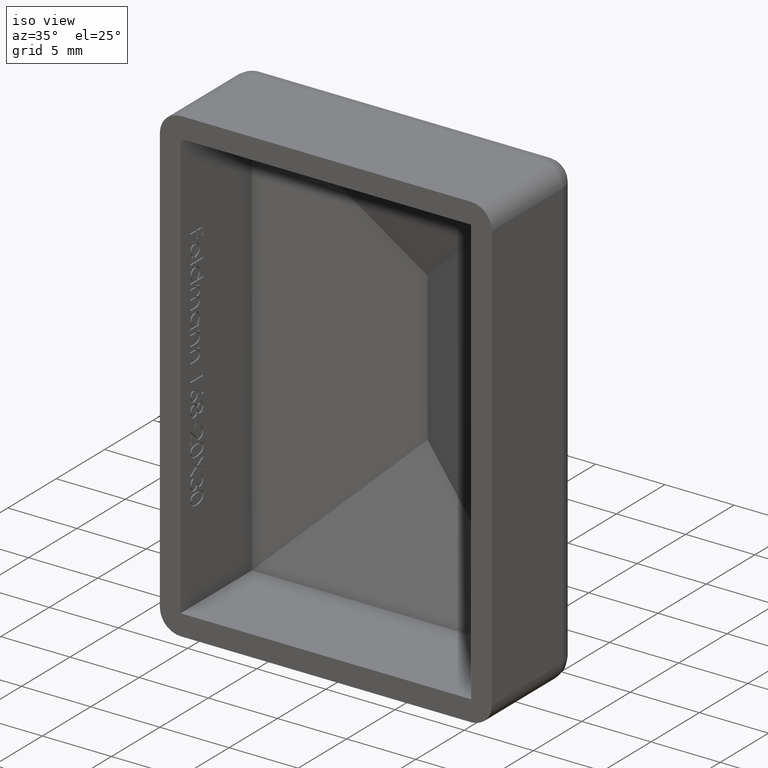
[diagram: clean part render]
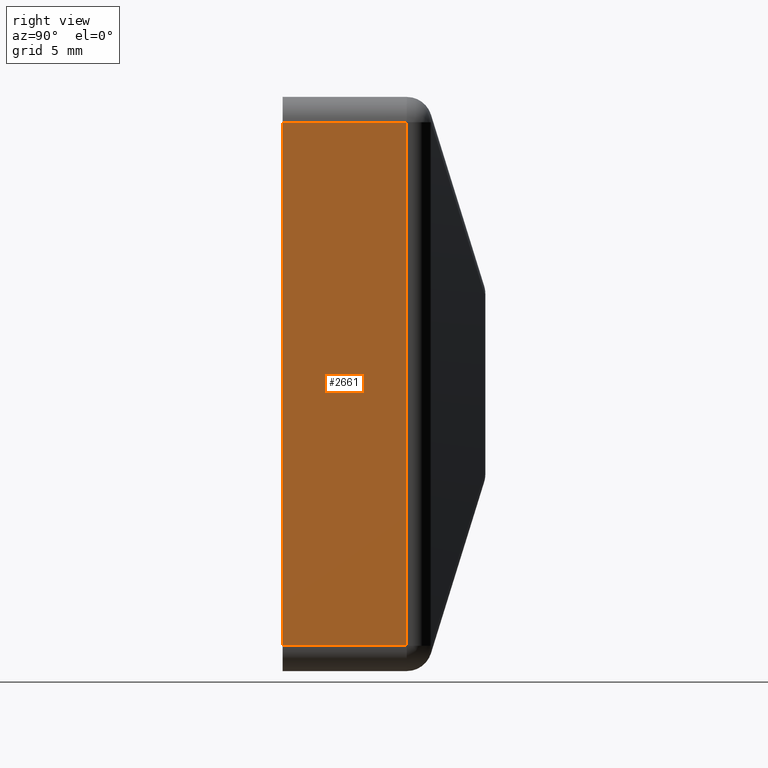
[diagram: tour spotlight — one face highlighted and labeled with its STEP entity id]
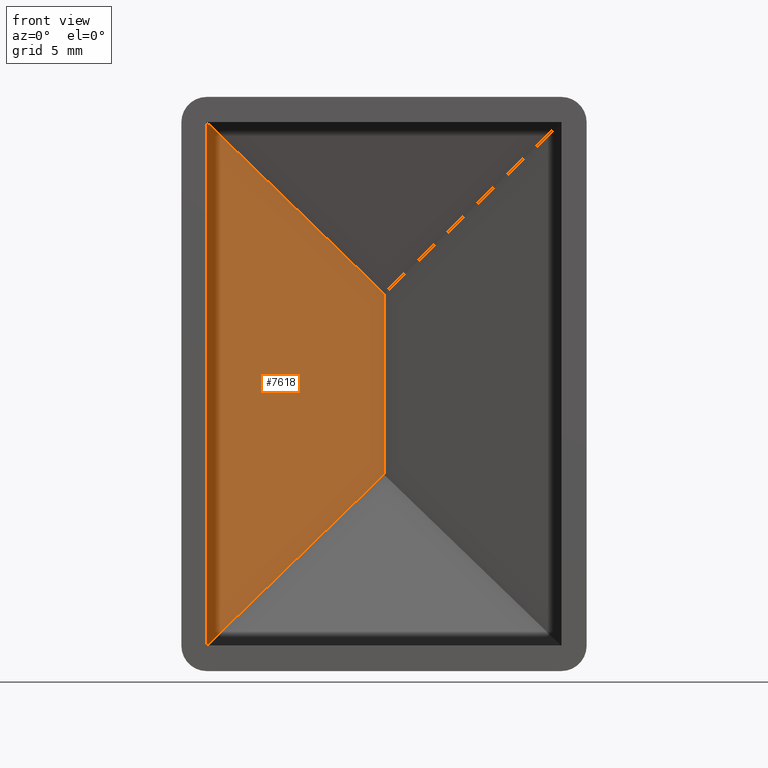
[diagram: tour spotlight — one face highlighted and labeled with its STEP entity id]
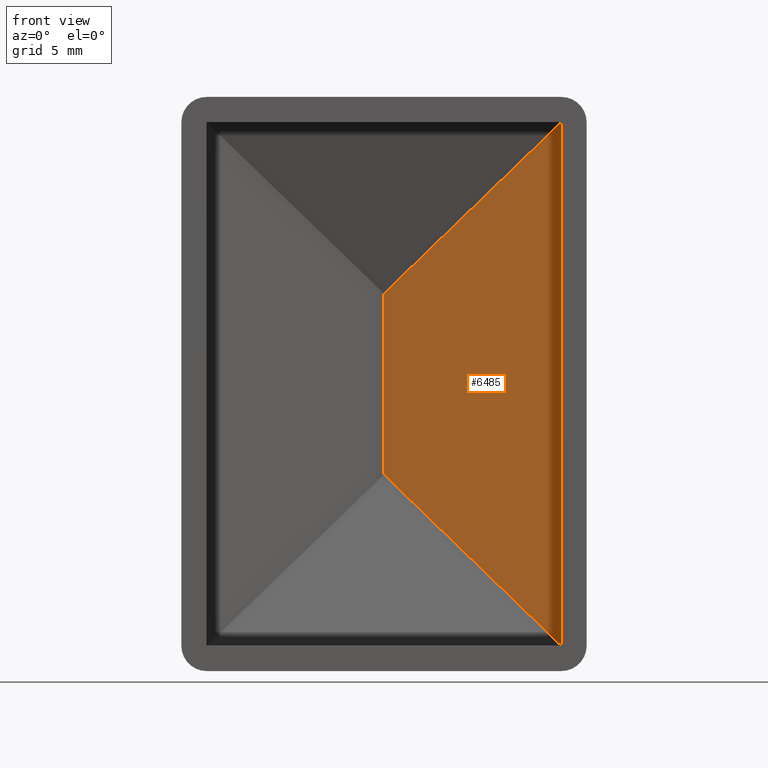
[diagram: tour spotlight — one face highlighted and labeled with its STEP entity id]
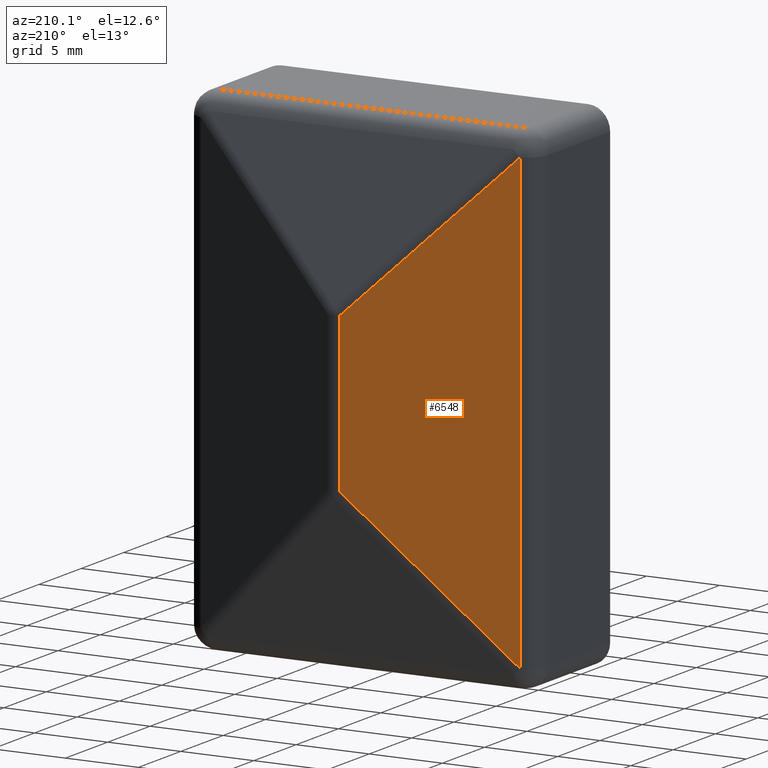
[diagram: tour spotlight — one face highlighted and labeled with its STEP entity id]
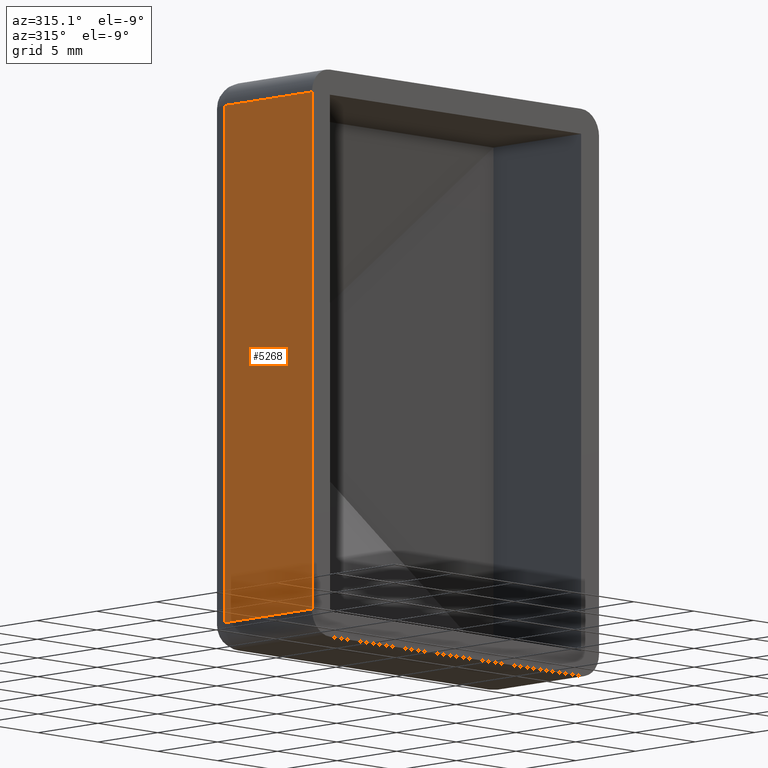
[diagram: tour spotlight — one face highlighted and labeled with its STEP entity id]
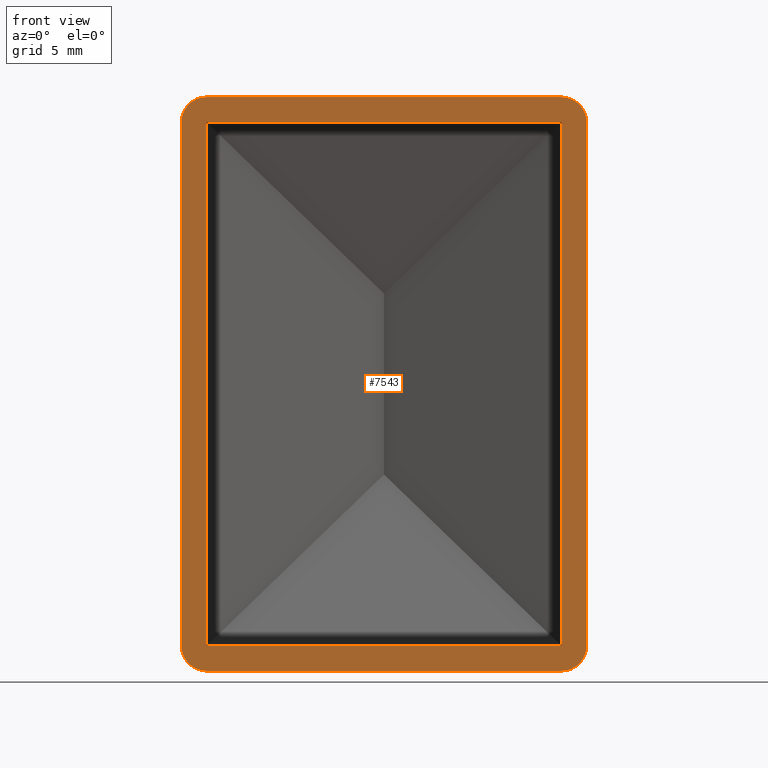
[diagram: tour spotlight — one face highlighted and labeled with its STEP entity id]
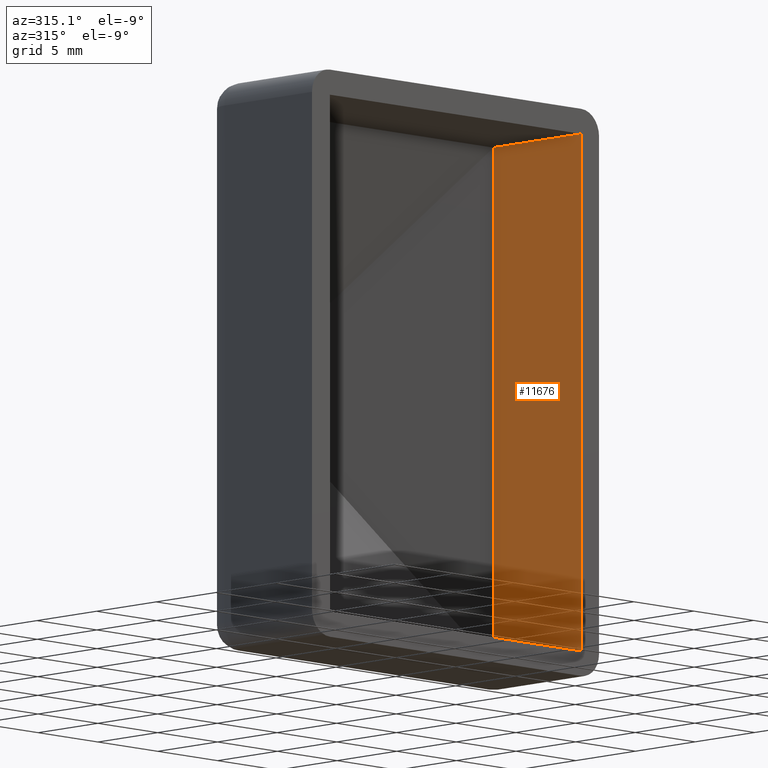
[diagram: tour spotlight — one face highlighted and labeled with its STEP entity id]
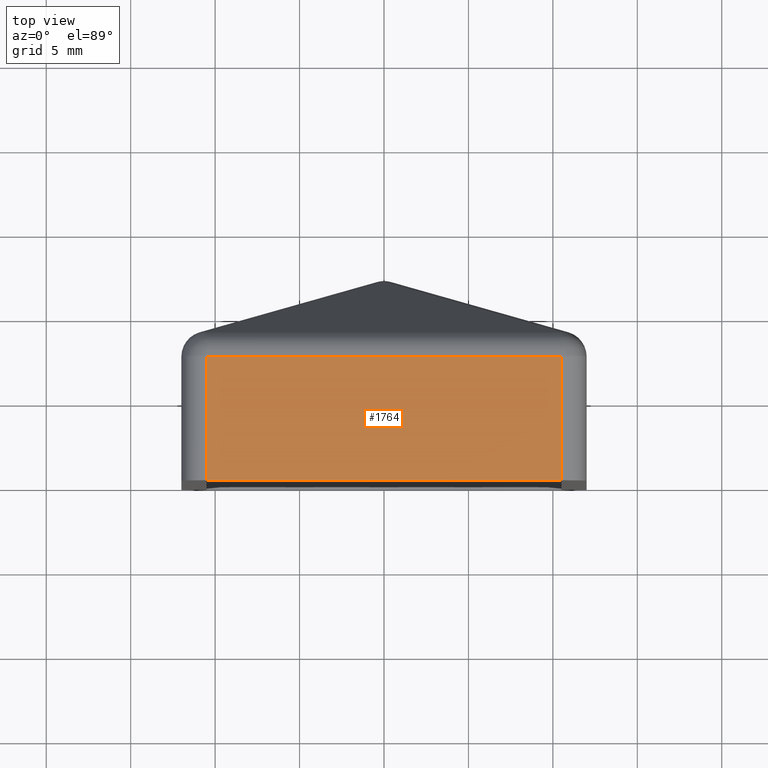
[diagram: tour spotlight — one face highlighted and labeled with its STEP entity id]
A machine part: a face-by-face anatomy tour. The part has 263 B-rep faces; the first image is the clean iso view, then the 8 largest visible faces are spotlighted one at a time (largest first), each with its STEP entity span.

Face 1 — right view, entity #2661. In plain terms, the highlighted planar face has unit normal (-1, 0, 0).
Definition (entity closure, byte-faithful):
#495 = ORIENTED_EDGE ( 'NONE', *, *, #4930, .T. ) ;
#1062 = VECTOR ( 'NONE', #8036, 1000.000000000000000 ) ;
#1474 = CARTESIAN_POINT ( 'NONE',  ( 12.00000000000001954, 7.350000000000001421, -16.99999999999997513 ) ) ;
#1808 = EDGE_CURVE ( 'NONE', #9112, #10849, #3072, .T. ) ;
#2187 = CARTESIAN_POINT ( 'NONE',  ( 12.00000000000001066, 30.00000000000000000, -15.49999999999997335 ) ) ;
#2231 = CARTESIAN_POINT ( 'NONE',  ( 12.00000000000001066, 0.000000000000000000, -15.49999999999997335 ) ) ;
#2661 = ADVANCED_FACE ( 'NONE', ( #10814 ), #13761, .F. ) ;
#3072 = LINE ( 'NONE', #1474, #1062 ) ;
#3106 = DIRECTION ( 'NONE',  ( -2.040851148208008245E-16, -0.000000000000000000, -1.000000000000000000 ) ) ;
#3140 = DIRECTION ( 'NONE',  ( -0.000000000000000000, 1.000000000000000000, -0.000000000000000000 ) ) ;
#3244 = DIRECTION ( 'NONE',  ( 2.040851148208008491E-16, 0.000000000000000000, 1.000000000000000000 ) ) ;
#3299 = EDGE_LOOP ( 'NONE', ( #13499, #495, #5204, #11375 ) ) ;
#3859 = EDGE_CURVE ( 'NONE', #10849, #6125, #11468, .T. ) ;
#3936 = AXIS2_PLACEMENT_3D ( 'NONE', #12941, #7707, #3244 ) ;
#3966 = CARTESIAN_POINT ( 'NONE',  ( 12.00000000000001954, 7.350000000000001421, -15.49999999999997335 ) ) ;
#4152 = EDGE_CURVE ( 'NONE', #6125, #13485, #12153, .T. ) ;
#4930 = EDGE_CURVE ( 'NONE', #13485, #9112, #13510, .T. ) ;
#5204 = ORIENTED_EDGE ( 'NONE', *, *, #1808, .T. ) ;
#6125 = VERTEX_POINT ( 'NONE', #7074 ) ;
#7074 = CARTESIAN_POINT ( 'NONE',  ( 12.00000000000001776, 0.000000000000000000, 15.50000000000002842 ) ) ;
#7707 = DIRECTION ( 'NONE',  ( -1.000000000000000000, 0.000000000000000000, 2.040851148208008491E-16 ) ) ;
#8036 = DIRECTION ( 'NONE',  ( -0.000000000000000000, -0.000000000000000000, 1.000000000000000000 ) ) ;
#8606 = CARTESIAN_POINT ( 'NONE',  ( 12.00000000000001066, 0.000000000000000000, -16.99999999999997513 ) ) ;
#8639 = CARTESIAN_POINT ( 'NONE',  ( 12.00000000000001954, 7.350000000000001421, 15.50000000000002842 ) ) ;
#9112 = VERTEX_POINT ( 'NONE', #3966 ) ;
#9412 = VECTOR ( 'NONE', #3106, 1000.000000000000000 ) ;
#10294 = VECTOR ( 'NONE', #3140, 1000.000000000000000 ) ;
#10814 = FACE_OUTER_BOUND ( 'NONE', #3299, .T. ) ;
#10849 = VERTEX_POINT ( 'NONE', #8639 ) ;
#11375 = ORIENTED_EDGE ( 'NONE', *, *, #3859, .T. ) ;
#11382 = CARTESIAN_POINT ( 'NONE',  ( 12.00000000000001776, 30.00000000000000000, 15.50000000000002842 ) ) ;
#11468 = LINE ( 'NONE', #11382, #12517 ) ;
#12153 = LINE ( 'NONE', #8606, #9412 ) ;
#12517 = VECTOR ( 'NONE', #13569, 1000.000000000000000 ) ;
#12941 = CARTESIAN_POINT ( 'NONE',  ( 12.00000000000001066, 30.00000000000000000, -16.99999999999997513 ) ) ;
#13485 = VERTEX_POINT ( 'NONE', #2231 ) ;
#13499 = ORIENTED_EDGE ( 'NONE', *, *, #4152, .T. ) ;
#13510 = LINE ( 'NONE', #2187, #10294 ) ;
#13569 = DIRECTION ( 'NONE',  ( 0.000000000000000000, -1.000000000000000000, 0.000000000000000000 ) ) ;
#13761 = PLANE ( 'NONE',  #3936 ) ;

Face 2 — front view, entity #7618. In plain terms, the highlighted planar face has unit normal (0.2873, -0.9578, 0).
Definition (entity closure, byte-faithful):
#292 = DIRECTION ( 'NONE',  ( -0.7029955450421472296, -0.2108986635126437192, -0.6792046947566505732 ) ) ;
#366 = PLANE ( 'NONE',  #392 ) ;
#392 = AXIS2_PLACEMENT_3D ( 'NONE', #1446, #13320, #7859 ) ;
#457 = VERTEX_POINT ( 'NONE', #7562 ) ;
#475 = CARTESIAN_POINT ( 'NONE',  ( 1.310280479957180804E-15, 10.50000000000000000, 5.355342120955786100 ) ) ;
#581 = CARTESIAN_POINT ( 'NONE',  ( 7.860465750519907147E-16, 10.50000000000000000, -5.355342120955782548 ) ) ;
#894 = VECTOR ( 'NONE', #292, 1000.000000000000114 ) ;
#1009 = CARTESIAN_POINT ( 'NONE',  ( -10.49999999999998579, 7.350000000000012967, 15.50000000000003020 ) ) ;
#1446 = CARTESIAN_POINT ( 'NONE',  ( -10.49999999999998401, 7.350000000000012967, -16.99999999999997513 ) ) ;
#2316 = LINE ( 'NONE', #13024, #10591 ) ;
#3374 = ORIENTED_EDGE ( 'NONE', *, *, #14206, .T. ) ;
#3655 = EDGE_LOOP ( 'NONE', ( #11872, #3374, #11572, #13982 ) ) ;
#4240 = DIRECTION ( 'NONE',  ( 0.000000000000000000, 0.000000000000000000, 1.000000000000000000 ) ) ;
#5055 = LINE ( 'NONE', #11802, #8138 ) ;
#5643 = CARTESIAN_POINT ( 'NONE',  ( -5.930432836189265089, 8.720870149143225447, 11.08507661598342331 ) ) ;
#6460 = DIRECTION ( 'NONE',  ( 2.040851148208008491E-16, 6.122553444624010683E-17, 1.000000000000000000 ) ) ;
#6584 = EDGE_CURVE ( 'NONE', #457, #13883, #2316, .T. ) ;
#6691 = VECTOR ( 'NONE', #11101, 1000.000000000000114 ) ;
#6876 = LINE ( 'NONE', #5643, #6691 ) ;
#7562 = CARTESIAN_POINT ( 'NONE',  ( -10.49999999999996447, 7.350000000000019185, -15.50000000000000355 ) ) ;
#7618 = ADVANCED_FACE ( 'NONE', ( #7631 ), #366, .T. ) ;
#7631 = FACE_OUTER_BOUND ( 'NONE', #3655, .T. ) ;
#7859 = DIRECTION ( 'NONE',  ( 0.9578262852211515410, 0.2873478855663447740, 0.000000000000000000 ) ) ;
#8138 = VECTOR ( 'NONE', #4240, 1000.000000000000000 ) ;
#10591 = VECTOR ( 'NONE', #6460, 1000.000000000000000 ) ;
#10671 = LINE ( 'NONE', #13399, #894 ) ;
#11101 = DIRECTION ( 'NONE',  ( -0.7029955450421472296, -0.2108986635126437192, 0.6792046947566505732 ) ) ;
#11572 = ORIENTED_EDGE ( 'NONE', *, *, #6584, .F. ) ;
#11574 = EDGE_CURVE ( 'NONE', #12856, #13210, #5055, .T. ) ;
#11802 = CARTESIAN_POINT ( 'NONE',  ( 1.188307735552561752E-15, 10.50000000000000000, -16.99999999999997513 ) ) ;
#11872 = ORIENTED_EDGE ( 'NONE', *, *, #11574, .T. ) ;
#12375 = EDGE_CURVE ( 'NONE', #12856, #457, #10671, .T. ) ;
#12856 = VERTEX_POINT ( 'NONE', #581 ) ;
#13024 = CARTESIAN_POINT ( 'NONE',  ( -10.49999999999999112, 7.350000000000011191, -16.99999999999997513 ) ) ;
#13210 = VERTEX_POINT ( 'NONE', #475 ) ;
#13320 = DIRECTION ( 'NONE',  ( 0.2873478855663448295, -0.9578262852211516520, 0.000000000000000000 ) ) ;
#13399 = CARTESIAN_POINT ( 'NONE',  ( -11.21621681187841268, 7.135134956436484543, -16.19197852606921373 ) ) ;
#13883 = VERTEX_POINT ( 'NONE', #1009 ) ;
#13982 = ORIENTED_EDGE ( 'NONE', *, *, #12375, .F. ) ;
#14206 = EDGE_CURVE ( 'NONE', #13210, #13883, #6876, .T. ) ;

Face 3 — front view, entity #6485. In plain terms, the highlighted planar face has unit normal (-0.2873, -0.9578, 0).
Definition (entity closure, byte-faithful):
#475 = CARTESIAN_POINT ( 'NONE',  ( 1.310280479957180804E-15, 10.50000000000000000, 5.355342120955786100 ) ) ;
#479 = ORIENTED_EDGE ( 'NONE', *, *, #6685, .T. ) ;
#581 = CARTESIAN_POINT ( 'NONE',  ( 7.860465750519907147E-16, 10.50000000000000000, -5.355342120955782548 ) ) ;
#681 = LINE ( 'NONE', #13213, #7860 ) ;
#1425 = DIRECTION ( 'NONE',  ( 0.7029955450421473406, -0.2108986635126437192, -0.6792046947566505732 ) ) ;
#1575 = EDGE_CURVE ( 'NONE', #12741, #10915, #6186, .T. ) ;
#2362 = CARTESIAN_POINT ( 'NONE',  ( -0.6195615678548822558, 10.68586847035646414, -4.756747821823210209 ) ) ;
#3335 = DIRECTION ( 'NONE',  ( 2.040851148208008491E-16, -6.122553444624009450E-17, 1.000000000000000000 ) ) ;
#3617 = AXIS2_PLACEMENT_3D ( 'NONE', #8153, #6132, #7044 ) ;
#3786 = CARTESIAN_POINT ( 'NONE',  ( 10.50000000000001066, 7.350000000000009415, -16.99999999999997513 ) ) ;
#4064 = ORIENTED_EDGE ( 'NONE', *, *, #4324, .F. ) ;
#4240 = DIRECTION ( 'NONE',  ( 0.000000000000000000, 0.000000000000000000, 1.000000000000000000 ) ) ;
#4324 = EDGE_CURVE ( 'NONE', #13210, #10915, #681, .T. ) ;
#4412 = FACE_OUTER_BOUND ( 'NONE', #4464, .T. ) ;
#4464 = EDGE_LOOP ( 'NONE', ( #7518, #4064, #10252, #479 ) ) ;
#4517 = CARTESIAN_POINT ( 'NONE',  ( 10.50000000000000533, 7.350000000000010303, 15.50000000000004086 ) ) ;
#5055 = LINE ( 'NONE', #11802, #8138 ) ;
#5099 = VECTOR ( 'NONE', #1425, 1000.000000000000114 ) ;
#6132 = DIRECTION ( 'NONE',  ( -0.2873478855663447740, -0.9578262852211516520, 0.000000000000000000 ) ) ;
#6186 = LINE ( 'NONE', #3786, #10334 ) ;
#6485 = ADVANCED_FACE ( 'NONE', ( #4412 ), #10465, .T. ) ;
#6685 = EDGE_CURVE ( 'NONE', #12856, #12741, #11599, .T. ) ;
#7044 = DIRECTION ( 'NONE',  ( 0.9578262852211515410, -0.2873478855663447185, 0.000000000000000000 ) ) ;
#7518 = ORIENTED_EDGE ( 'NONE', *, *, #1575, .T. ) ;
#7860 = VECTOR ( 'NONE', #12057, 1000.000000000000114 ) ;
#8138 = VECTOR ( 'NONE', #4240, 1000.000000000000000 ) ;
#8153 = CARTESIAN_POINT ( 'NONE',  ( 4.336808689942017736E-16, 10.50000000000000000, -16.99999999999997513 ) ) ;
#10252 = ORIENTED_EDGE ( 'NONE', *, *, #11574, .F. ) ;
#10334 = VECTOR ( 'NONE', #3335, 1000.000000000000000 ) ;
#10465 = PLANE ( 'NONE',  #3617 ) ;
#10915 = VERTEX_POINT ( 'NONE', #4517 ) ;
#11574 = EDGE_CURVE ( 'NONE', #12856, #13210, #5055, .T. ) ;
#11599 = LINE ( 'NONE', #2362, #5099 ) ;
#11802 = CARTESIAN_POINT ( 'NONE',  ( 1.188307735552561752E-15, 10.50000000000000000, -16.99999999999997513 ) ) ;
#12057 = DIRECTION ( 'NONE',  ( 0.7029955450421473406, -0.2108986635126436915, 0.6792046947566505732 ) ) ;
#12741 = VERTEX_POINT ( 'NONE', #12874 ) ;
#12856 = VERTEX_POINT ( 'NONE', #581 ) ;
#12874 = CARTESIAN_POINT ( 'NONE',  ( 10.49999999999997158, 7.350000000000018296, -15.50000000000000533 ) ) ;
#13210 = VERTEX_POINT ( 'NONE', #475 ) ;
#13213 = CARTESIAN_POINT ( 'NONE',  ( -10.67418124154871784, 13.70225437246460842, -4.957602339465509544 ) ) ;

Face 4 — auxiliary view, entity #6548. In plain terms, the highlighted planar face has unit normal (0.2873, -0.9578, 0).
Definition (entity closure, byte-faithful):
#768 = EDGE_LOOP ( 'NONE', ( #1048, #10912, #10367, #2681 ) ) ;
#959 = CARTESIAN_POINT ( 'NONE',  ( -0.4310218283495158564, 11.93673942783172848, -5.355342120955786989 ) ) ;
#1048 = ORIENTED_EDGE ( 'NONE', *, *, #11108, .F. ) ;
#1169 = CARTESIAN_POINT ( 'NONE',  ( -10.93102182834950042, 8.786739427831740556, -16.99999999999997513 ) ) ;
#1173 = CARTESIAN_POINT ( 'NONE',  ( -10.93102182834950042, 8.786739427831740556, 15.50000000000002132 ) ) ;
#1291 = CARTESIAN_POINT ( 'NONE',  ( -10.93102182834950042, 8.786739427831740556, -16.99999999999997513 ) ) ;
#1665 = EDGE_CURVE ( 'NONE', #11258, #5918, #2567, .T. ) ;
#2497 = LINE ( 'NONE', #4247, #9210 ) ;
#2567 = LINE ( 'NONE', #1169, #7376 ) ;
#2681 = ORIENTED_EDGE ( 'NONE', *, *, #6992, .T. ) ;
#3274 = CARTESIAN_POINT ( 'NONE',  ( -10.93102182834950042, 8.786739427831740556, -15.50000000000002842 ) ) ;
#3708 = CARTESIAN_POINT ( 'NONE',  ( -0.4310218283495180214, 11.93673942783172670, 5.355342120955778995 ) ) ;
#4247 = CARTESIAN_POINT ( 'NONE',  ( 4.587009095683693083, 13.44214870504168680, 0.5071319351670905418 ) ) ;
#4556 = DIRECTION ( 'NONE',  ( 0.2873478855663448295, -0.9578262852211516520, 0.000000000000000000 ) ) ;
#5918 = VERTEX_POINT ( 'NONE', #1173 ) ;
#6548 = ADVANCED_FACE ( 'NONE', ( #9032 ), #7846, .F. ) ;
#6992 = EDGE_CURVE ( 'NONE', #5918, #7407, #2497, .T. ) ;
#7115 = DIRECTION ( 'NONE',  ( -0.7029955450421473406, -0.2108986635126437192, -0.6792046947566505732 ) ) ;
#7376 = VECTOR ( 'NONE', #7850, 1000.000000000000000 ) ;
#7407 = VERTEX_POINT ( 'NONE', #3708 ) ;
#7846 = PLANE ( 'NONE',  #10645 ) ;
#7850 = DIRECTION ( 'NONE',  ( -0.000000000000000000, -0.000000000000000000, 1.000000000000000000 ) ) ;
#9032 = FACE_OUTER_BOUND ( 'NONE', #768, .T. ) ;
#9181 = VECTOR ( 'NONE', #10650, 1000.000000000000000 ) ;
#9210 = VECTOR ( 'NONE', #11906, 1000.000000000000114 ) ;
#9981 = VECTOR ( 'NONE', #7115, 1000.000000000000114 ) ;
#10233 = LINE ( 'NONE', #11679, #9181 ) ;
#10367 = ORIENTED_EDGE ( 'NONE', *, *, #1665, .T. ) ;
#10645 = AXIS2_PLACEMENT_3D ( 'NONE', #1291, #4556, #11911 ) ;
#10650 = DIRECTION ( 'NONE',  ( -0.000000000000000000, -0.000000000000000000, 1.000000000000000000 ) ) ;
#10912 = ORIENTED_EDGE ( 'NONE', *, *, #12863, .T. ) ;
#11108 = EDGE_CURVE ( 'NONE', #13788, #7407, #10233, .T. ) ;
#11144 = CARTESIAN_POINT ( 'NONE',  ( -11.64723864022793087, 8.571874384268211244, -16.19197852606921373 ) ) ;
#11258 = VERTEX_POINT ( 'NONE', #3274 ) ;
#11679 = CARTESIAN_POINT ( 'NONE',  ( -0.4310218283495175218, 11.93673942783172848, -16.99999999999997513 ) ) ;
#11906 = DIRECTION ( 'NONE',  ( 0.7029955450421473406, 0.2108986635126437192, -0.6792046947566505732 ) ) ;
#11911 = DIRECTION ( 'NONE',  ( 0.9578262852211515410, 0.2873478855663447740, 0.000000000000000000 ) ) ;
#12863 = EDGE_CURVE ( 'NONE', #13788, #11258, #12889, .T. ) ;
#12889 = LINE ( 'NONE', #11144, #9981 ) ;
#13788 = VERTEX_POINT ( 'NONE', #959 ) ;

Face 5 — auxiliary view, entity #5268. In plain terms, the highlighted planar face has unit normal (1, 0, -0).
Definition (entity closure, byte-faithful):
#426 = VERTEX_POINT ( 'NONE', #2001 ) ;
#721 = CARTESIAN_POINT ( 'NONE',  ( -11.99999999999998224, 30.00000000000000000, 15.50000000000002842 ) ) ;
#1300 = LINE ( 'NONE', #11741, #3855 ) ;
#1351 = DIRECTION ( 'NONE',  ( 0.000000000000000000, -1.000000000000000000, 0.000000000000000000 ) ) ;
#1397 = CARTESIAN_POINT ( 'NONE',  ( -11.99999999999998934, 30.00000000000000000, -15.49999999999997335 ) ) ;
#1847 = DIRECTION ( 'NONE',  ( 1.000000000000000000, 0.000000000000000000, -2.040851148208008491E-16 ) ) ;
#2001 = CARTESIAN_POINT ( 'NONE',  ( -11.99999999999998224, 7.350000000000012967, -15.49999999999997335 ) ) ;
#2483 = VECTOR ( 'NONE', #1351, 1000.000000000000000 ) ;
#2624 = ORIENTED_EDGE ( 'NONE', *, *, #7758, .T. ) ;
#2756 = CARTESIAN_POINT ( 'NONE',  ( -11.99999999999998934, 0.000000000000000000, -16.99999999999997513 ) ) ;
#2780 = VERTEX_POINT ( 'NONE', #5954 ) ;
#3195 = FACE_OUTER_BOUND ( 'NONE', #5554, .T. ) ;
#3855 = VECTOR ( 'NONE', #4035, 1000.000000000000000 ) ;
#4035 = DIRECTION ( 'NONE',  ( -0.000000000000000000, -0.000000000000000000, 1.000000000000000000 ) ) ;
#4208 = CARTESIAN_POINT ( 'NONE',  ( -11.99999999999998934, 0.000000000000000000, -15.49999999999997335 ) ) ;
#4857 = DIRECTION ( 'NONE',  ( 2.040851148208008245E-16, 0.000000000000000000, 1.000000000000000000 ) ) ;
#5069 = DIRECTION ( 'NONE',  ( -2.040851148208008491E-16, 0.000000000000000000, -1.000000000000000000 ) ) ;
#5209 = CARTESIAN_POINT ( 'NONE',  ( -11.99999999999998934, 30.00000000000000000, -16.99999999999997513 ) ) ;
#5268 = ADVANCED_FACE ( 'NONE', ( #3195 ), #11666, .F. ) ;
#5454 = ORIENTED_EDGE ( 'NONE', *, *, #9860, .F. ) ;
#5554 = EDGE_LOOP ( 'NONE', ( #5454, #9475, #2624, #5565 ) ) ;
#5565 = ORIENTED_EDGE ( 'NONE', *, *, #9658, .T. ) ;
#5954 = CARTESIAN_POINT ( 'NONE',  ( -11.99999999999998224, 0.000000000000000000, 15.50000000000002842 ) ) ;
#6743 = AXIS2_PLACEMENT_3D ( 'NONE', #5209, #1847, #5069 ) ;
#7758 = EDGE_CURVE ( 'NONE', #9201, #2780, #7991, .T. ) ;
#7991 = LINE ( 'NONE', #2756, #10248 ) ;
#8898 = EDGE_CURVE ( 'NONE', #426, #9201, #10581, .T. ) ;
#9201 = VERTEX_POINT ( 'NONE', #4208 ) ;
#9475 = ORIENTED_EDGE ( 'NONE', *, *, #8898, .T. ) ;
#9658 = EDGE_CURVE ( 'NONE', #2780, #14095, #12620, .T. ) ;
#9860 = EDGE_CURVE ( 'NONE', #426, #14095, #1300, .T. ) ;
#10248 = VECTOR ( 'NONE', #4857, 1000.000000000000000 ) ;
#10415 = VECTOR ( 'NONE', #13013, 1000.000000000000000 ) ;
#10581 = LINE ( 'NONE', #1397, #2483 ) ;
#11666 = PLANE ( 'NONE',  #6743 ) ;
#11741 = CARTESIAN_POINT ( 'NONE',  ( -11.99999999999998224, 7.350000000000012967, -16.99999999999997513 ) ) ;
#12620 = LINE ( 'NONE', #721, #10415 ) ;
#13013 = DIRECTION ( 'NONE',  ( -0.000000000000000000, 1.000000000000000000, -0.000000000000000000 ) ) ;
#14095 = VERTEX_POINT ( 'NONE', #14136 ) ;
#14136 = CARTESIAN_POINT ( 'NONE',  ( -11.99999999999998224, 7.350000000000012967, 15.50000000000002842 ) ) ;

Face 6 — front view, entity #7543. In plain terms, the highlighted planar face has unit normal (0, 1, 0).
Definition (entity closure, byte-faithful):
#2 = CARTESIAN_POINT ( 'NONE',  ( -11.99999999999998224, 0.000000000000000000, 17.00000000000002842 ) ) ;
#177 = DIRECTION ( 'NONE',  ( 0.000000000000000000, 0.000000000000000000, 1.000000000000000000 ) ) ;
#299 = VERTEX_POINT ( 'NONE', #6282 ) ;
#490 = CARTESIAN_POINT ( 'NONE',  ( 10.50000000000001776, 0.000000000000000000, 15.50000000000002842 ) ) ;
#693 = EDGE_CURVE ( 'NONE', #299, #3822, #6697, .T. ) ;
#868 = ORIENTED_EDGE ( 'NONE', *, *, #8246, .F. ) ;
#1080 = DIRECTION ( 'NONE',  ( 1.000000000000000000, -0.000000000000000000, 0.000000000000000000 ) ) ;
#1640 = CIRCLE ( 'NONE', #2108, 1.499999999999999556 ) ;
#1706 = CIRCLE ( 'NONE', #10757, 1.500000000000001332 ) ;
#1719 = LINE ( 'NONE', #12079, #10485 ) ;
#2108 = AXIS2_PLACEMENT_3D ( 'NONE', #6537, #4142, #5258 ) ;
#2172 = CARTESIAN_POINT ( 'NONE',  ( 10.50000000000001599, 0.000000000000000000, 17.00000000000002842 ) ) ;
#2231 = CARTESIAN_POINT ( 'NONE',  ( 12.00000000000001066, 0.000000000000000000, -15.49999999999997335 ) ) ;
#2244 = DIRECTION ( 'NONE',  ( 0.000000000000000000, -0.000000000000000000, 1.000000000000000000 ) ) ;
#2427 = CARTESIAN_POINT ( 'NONE',  ( -10.49999999999999112, 0.000000000000000000, -16.99999999999997513 ) ) ;
#2627 = VERTEX_POINT ( 'NONE', #5195 ) ;
#2659 = VERTEX_POINT ( 'NONE', #12221 ) ;
#2747 = EDGE_CURVE ( 'NONE', #2659, #299, #1719, .T. ) ;
#2756 = CARTESIAN_POINT ( 'NONE',  ( -11.99999999999998934, 0.000000000000000000, -16.99999999999997513 ) ) ;
#2780 = VERTEX_POINT ( 'NONE', #5954 ) ;
#2861 = LINE ( 'NONE', #2427, #12830 ) ;
#2941 = ORIENTED_EDGE ( 'NONE', *, *, #7758, .F. ) ;
#2996 = EDGE_CURVE ( 'NONE', #12606, #4774, #7024, .T. ) ;
#3007 = CARTESIAN_POINT ( 'NONE',  ( 10.50000000000001066, 0.000000000000000000, -16.99999999999997513 ) ) ;
#3096 = EDGE_CURVE ( 'NONE', #6125, #4774, #1706, .T. ) ;
#3106 = DIRECTION ( 'NONE',  ( -2.040851148208008245E-16, -0.000000000000000000, -1.000000000000000000 ) ) ;
#3426 = CARTESIAN_POINT ( 'NONE',  ( -11.99999999999998934, 0.000000000000000000, -15.49999999999997335 ) ) ;
#3613 = DIRECTION ( 'NONE',  ( -1.000000000000000000, -0.000000000000000000, -0.000000000000000000 ) ) ;
#3636 = DIRECTION ( 'NONE',  ( 2.040851148208008491E-16, -0.000000000000000000, 1.000000000000000000 ) ) ;
#3822 = VERTEX_POINT ( 'NONE', #12436 ) ;
#4019 = CARTESIAN_POINT ( 'NONE',  ( -10.49999999999999112, 0.000000000000000000, -16.99999999999997513 ) ) ;
#4142 = DIRECTION ( 'NONE',  ( -0.000000000000000000, -1.000000000000000000, -0.000000000000000000 ) ) ;
#4152 = EDGE_CURVE ( 'NONE', #6125, #13485, #12153, .T. ) ;
#4205 = VERTEX_POINT ( 'NONE', #4019 ) ;
#4208 = CARTESIAN_POINT ( 'NONE',  ( -11.99999999999998934, 0.000000000000000000, -15.49999999999997335 ) ) ;
#4674 = EDGE_CURVE ( 'NONE', #2627, #2659, #2861, .T. ) ;
#4767 = ORIENTED_EDGE ( 'NONE', *, *, #2996, .F. ) ;
#4774 = VERTEX_POINT ( 'NONE', #2172 ) ;
#4857 = DIRECTION ( 'NONE',  ( 2.040851148208008245E-16, 0.000000000000000000, 1.000000000000000000 ) ) ;
#5195 = CARTESIAN_POINT ( 'NONE',  ( -10.49999999999999112, 0.000000000000000000, -15.49999999999997335 ) ) ;
#5210 = ORIENTED_EDGE ( 'NONE', *, *, #3096, .T. ) ;
#5258 = DIRECTION ( 'NONE',  ( 0.000000000000000000, 0.000000000000000000, 1.000000000000000000 ) ) ;
#5396 = DIRECTION ( 'NONE',  ( 0.000000000000000000, 1.000000000000000000, 0.000000000000000000 ) ) ;
#5413 = ORIENTED_EDGE ( 'NONE', *, *, #7189, .T. ) ;
#5443 = AXIS2_PLACEMENT_3D ( 'NONE', #7708, #5396, #2244 ) ;
#5561 = DIRECTION ( 'NONE',  ( 0.000000000000000000, 0.000000000000000000, 1.000000000000000000 ) ) ;
#5710 = ORIENTED_EDGE ( 'NONE', *, *, #693, .T. ) ;
#5770 = FACE_OUTER_BOUND ( 'NONE', #9418, .T. ) ;
#5954 = CARTESIAN_POINT ( 'NONE',  ( -11.99999999999998224, 0.000000000000000000, 15.50000000000002842 ) ) ;
#6125 = VERTEX_POINT ( 'NONE', #7074 ) ;
#6282 = CARTESIAN_POINT ( 'NONE',  ( 10.50000000000001776, 0.000000000000000000, 15.50000000000003020 ) ) ;
#6459 = DIRECTION ( 'NONE',  ( 1.000000000000000000, 0.000000000000000000, 0.000000000000000000 ) ) ;
#6537 = CARTESIAN_POINT ( 'NONE',  ( -10.49999999999999112, 0.000000000000000000, -15.49999999999997335 ) ) ;
#6697 = LINE ( 'NONE', #3007, #6884 ) ;
#6733 = DIRECTION ( 'NONE',  ( -1.000000000000000000, 0.000000000000000000, 0.000000000000000000 ) ) ;
#6884 = VECTOR ( 'NONE', #13862, 1000.000000000000000 ) ;
#6977 = VECTOR ( 'NONE', #3613, 1000.000000000000000 ) ;
#7024 = LINE ( 'NONE', #2, #7696 ) ;
#7074 = CARTESIAN_POINT ( 'NONE',  ( 12.00000000000001776, 0.000000000000000000, 15.50000000000002842 ) ) ;
#7153 = FACE_BOUND ( 'NONE', #12915, .T. ) ;
#7189 = EDGE_CURVE ( 'NONE', #12606, #2780, #10259, .T. ) ;
#7248 = ORIENTED_EDGE ( 'NONE', *, *, #4674, .T. ) ;
#7268 = CARTESIAN_POINT ( 'NONE',  ( -10.49999999999998401, 0.000000000000000000, 17.00000000000002842 ) ) ;
#7543 = ADVANCED_FACE ( 'NONE', ( #7153, #5770 ), #9794, .F. ) ;
#7696 = VECTOR ( 'NONE', #6459, 1000.000000000000000 ) ;
#7708 = CARTESIAN_POINT ( 'NONE',  ( 0.000000000000000000, 0.000000000000000000, 0.000000000000000000 ) ) ;
#7758 = EDGE_CURVE ( 'NONE', #9201, #2780, #7991, .T. ) ;
#7991 = LINE ( 'NONE', #2756, #10248 ) ;
#8034 = DIRECTION ( 'NONE',  ( -0.000000000000000000, -1.000000000000000000, -0.000000000000000000 ) ) ;
#8200 = AXIS2_PLACEMENT_3D ( 'NONE', #10065, #12113, #5561 ) ;
#8246 = EDGE_CURVE ( 'NONE', #8644, #4205, #8702, .T. ) ;
#8398 = ORIENTED_EDGE ( 'NONE', *, *, #2747, .T. ) ;
#8470 = CIRCLE ( 'NONE', #8200, 1.499999999999999556 ) ;
#8606 = CARTESIAN_POINT ( 'NONE',  ( 12.00000000000001066, 0.000000000000000000, -16.99999999999997513 ) ) ;
#8644 = VERTEX_POINT ( 'NONE', #11384 ) ;
#8702 = LINE ( 'NONE', #9144, #6977 ) ;
#8984 = DIRECTION ( 'NONE',  ( -0.000000000000000000, -1.000000000000000000, -0.000000000000000000 ) ) ;
#9144 = CARTESIAN_POINT ( 'NONE',  ( -11.99999999999998934, 0.000000000000000000, -16.99999999999997513 ) ) ;
#9153 = ORIENTED_EDGE ( 'NONE', *, *, #12189, .T. ) ;
#9201 = VERTEX_POINT ( 'NONE', #4208 ) ;
#9401 = EDGE_CURVE ( 'NONE', #3822, #2627, #14157, .T. ) ;
#9412 = VECTOR ( 'NONE', #3106, 1000.000000000000000 ) ;
#9418 = EDGE_LOOP ( 'NONE', ( #868, #9153, #11348, #5210, #4767, #5413, #2941, #9473 ) ) ;
#9473 = ORIENTED_EDGE ( 'NONE', *, *, #9669, .T. ) ;
#9669 = EDGE_CURVE ( 'NONE', #9201, #4205, #1640, .T. ) ;
#9794 = PLANE ( 'NONE',  #5443 ) ;
#9998 = CARTESIAN_POINT ( 'NONE',  ( -10.49999999999998401, 0.000000000000000000, 15.50000000000003020 ) ) ;
#10065 = CARTESIAN_POINT ( 'NONE',  ( 10.50000000000000888, 0.000000000000000000, -15.49999999999997335 ) ) ;
#10248 = VECTOR ( 'NONE', #4857, 1000.000000000000000 ) ;
#10259 = CIRCLE ( 'NONE', #11756, 1.499999999999999556 ) ;
#10485 = VECTOR ( 'NONE', #1080, 1000.000000000000000 ) ;
#10757 = AXIS2_PLACEMENT_3D ( 'NONE', #490, #8034, #13528 ) ;
#11253 = VECTOR ( 'NONE', #6733, 1000.000000000000000 ) ;
#11348 = ORIENTED_EDGE ( 'NONE', *, *, #4152, .F. ) ;
#11384 = CARTESIAN_POINT ( 'NONE',  ( 10.50000000000000888, 0.000000000000000000, -16.99999999999997513 ) ) ;
#11756 = AXIS2_PLACEMENT_3D ( 'NONE', #9998, #8984, #177 ) ;
#12079 = CARTESIAN_POINT ( 'NONE',  ( -11.99999999999998224, 0.000000000000000000, 15.50000000000003020 ) ) ;
#12113 = DIRECTION ( 'NONE',  ( -0.000000000000000000, -1.000000000000000000, -0.000000000000000000 ) ) ;
#12153 = LINE ( 'NONE', #8606, #9412 ) ;
#12189 = EDGE_CURVE ( 'NONE', #8644, #13485, #8470, .T. ) ;
#12221 = CARTESIAN_POINT ( 'NONE',  ( -10.49999999999998401, 0.000000000000000000, 15.50000000000003020 ) ) ;
#12436 = CARTESIAN_POINT ( 'NONE',  ( 10.50000000000001066, 0.000000000000000000, -15.49999999999997335 ) ) ;
#12606 = VERTEX_POINT ( 'NONE', #7268 ) ;
#12830 = VECTOR ( 'NONE', #3636, 1000.000000000000000 ) ;
#12915 = EDGE_LOOP ( 'NONE', ( #5710, #13116, #7248, #8398 ) ) ;
#13116 = ORIENTED_EDGE ( 'NONE', *, *, #9401, .T. ) ;
#13485 = VERTEX_POINT ( 'NONE', #2231 ) ;
#13528 = DIRECTION ( 'NONE',  ( 2.312964634635740689E-15, 0.000000000000000000, 1.000000000000000000 ) ) ;
#13862 = DIRECTION ( 'NONE',  ( -2.040851148208008491E-16, 0.000000000000000000, -1.000000000000000000 ) ) ;
#14157 = LINE ( 'NONE', #3426, #11253 ) ;

Face 7 — auxiliary view, entity #11676. In plain terms, the highlighted planar face has unit normal (-1, 0, 0).
Definition (entity closure, byte-faithful):
#299 = VERTEX_POINT ( 'NONE', #6282 ) ;
#448 = DIRECTION ( 'NONE',  ( 0.000000000000000000, -1.000000000000000000, 0.000000000000000000 ) ) ;
#693 = EDGE_CURVE ( 'NONE', #299, #3822, #6697, .T. ) ;
#941 = ORIENTED_EDGE ( 'NONE', *, *, #693, .F. ) ;
#1338 = LINE ( 'NONE', #6067, #2007 ) ;
#1459 = PLANE ( 'NONE',  #9580 ) ;
#1575 = EDGE_CURVE ( 'NONE', #12741, #10915, #6186, .T. ) ;
#2007 = VECTOR ( 'NONE', #448, 1000.000000000000000 ) ;
#2119 = FACE_OUTER_BOUND ( 'NONE', #10834, .T. ) ;
#2489 = DIRECTION ( 'NONE',  ( -1.000000000000000000, 0.000000000000000000, 2.040851148208008491E-16 ) ) ;
#3007 = CARTESIAN_POINT ( 'NONE',  ( 10.50000000000001066, 0.000000000000000000, -16.99999999999997513 ) ) ;
#3335 = DIRECTION ( 'NONE',  ( 2.040851148208008491E-16, -6.122553444624009450E-17, 1.000000000000000000 ) ) ;
#3497 = CARTESIAN_POINT ( 'NONE',  ( 10.50000000000001066, 30.00000000000000000, -16.99999999999997513 ) ) ;
#3786 = CARTESIAN_POINT ( 'NONE',  ( 10.50000000000001066, 7.350000000000009415, -16.99999999999997513 ) ) ;
#3822 = VERTEX_POINT ( 'NONE', #12436 ) ;
#4517 = CARTESIAN_POINT ( 'NONE',  ( 10.50000000000000533, 7.350000000000010303, 15.50000000000004086 ) ) ;
#5086 = ORIENTED_EDGE ( 'NONE', *, *, #1575, .F. ) ;
#5175 = EDGE_CURVE ( 'NONE', #12741, #3822, #1338, .T. ) ;
#6067 = CARTESIAN_POINT ( 'NONE',  ( 10.50000000000000888, 30.00000000000000000, -15.49999999999997335 ) ) ;
#6076 = VECTOR ( 'NONE', #13318, 1000.000000000000000 ) ;
#6186 = LINE ( 'NONE', #3786, #10334 ) ;
#6282 = CARTESIAN_POINT ( 'NONE',  ( 10.50000000000001776, 0.000000000000000000, 15.50000000000003020 ) ) ;
#6697 = LINE ( 'NONE', #3007, #6884 ) ;
#6884 = VECTOR ( 'NONE', #13862, 1000.000000000000000 ) ;
#8315 = ORIENTED_EDGE ( 'NONE', *, *, #10940, .F. ) ;
#9580 = AXIS2_PLACEMENT_3D ( 'NONE', #3497, #2489, #10194 ) ;
#10194 = DIRECTION ( 'NONE',  ( 2.040851148208008491E-16, 0.000000000000000000, 1.000000000000000000 ) ) ;
#10334 = VECTOR ( 'NONE', #3335, 1000.000000000000000 ) ;
#10834 = EDGE_LOOP ( 'NONE', ( #941, #8315, #5086, #12764 ) ) ;
#10915 = VERTEX_POINT ( 'NONE', #4517 ) ;
#10940 = EDGE_CURVE ( 'NONE', #10915, #299, #11904, .T. ) ;
#11026 = CARTESIAN_POINT ( 'NONE',  ( 10.50000000000001776, 30.00000000000000000, 15.50000000000002842 ) ) ;
#11676 = ADVANCED_FACE ( 'NONE', ( #2119 ), #1459, .T. ) ;
#11904 = LINE ( 'NONE', #11026, #6076 ) ;
#12436 = CARTESIAN_POINT ( 'NONE',  ( 10.50000000000001066, 0.000000000000000000, -15.49999999999997335 ) ) ;
#12741 = VERTEX_POINT ( 'NONE', #12874 ) ;
#12764 = ORIENTED_EDGE ( 'NONE', *, *, #5175, .T. ) ;
#12874 = CARTESIAN_POINT ( 'NONE',  ( 10.49999999999997158, 7.350000000000018296, -15.50000000000000533 ) ) ;
#13318 = DIRECTION ( 'NONE',  ( 0.000000000000000000, -1.000000000000000000, 0.000000000000000000 ) ) ;
#13862 = DIRECTION ( 'NONE',  ( -2.040851148208008491E-16, 0.000000000000000000, -1.000000000000000000 ) ) ;

Face 8 — top view, entity #1764. In plain terms, the highlighted planar face has unit normal (0, 0, -1).
Definition (entity closure, byte-faithful):
#2 = CARTESIAN_POINT ( 'NONE',  ( -11.99999999999998224, 0.000000000000000000, 17.00000000000002842 ) ) ;
#190 = CARTESIAN_POINT ( 'NONE',  ( 10.50000000000001599, 30.00000000000000000, 17.00000000000002842 ) ) ;
#290 = LINE ( 'NONE', #3541, #13463 ) ;
#321 = EDGE_CURVE ( 'NONE', #4831, #4048, #9632, .T. ) ;
#1121 = CARTESIAN_POINT ( 'NONE',  ( -11.99999999999998934, 7.350000000000012967, 17.00000000000002842 ) ) ;
#1764 = ADVANCED_FACE ( 'NONE', ( #2057 ), #5881, .F. ) ;
#2057 = FACE_OUTER_BOUND ( 'NONE', #5117, .T. ) ;
#2062 = CARTESIAN_POINT ( 'NONE',  ( -10.49999999999998401, 7.350000000000012967, 17.00000000000002842 ) ) ;
#2172 = CARTESIAN_POINT ( 'NONE',  ( 10.50000000000001599, 0.000000000000000000, 17.00000000000002842 ) ) ;
#2247 = VECTOR ( 'NONE', #8677, 1000.000000000000000 ) ;
#2996 = EDGE_CURVE ( 'NONE', #12606, #4774, #7024, .T. ) ;
#3541 = CARTESIAN_POINT ( 'NONE',  ( -10.49999999999998401, 30.00000000000000000, 17.00000000000002842 ) ) ;
#4048 = VERTEX_POINT ( 'NONE', #6225 ) ;
#4774 = VERTEX_POINT ( 'NONE', #2172 ) ;
#4831 = VERTEX_POINT ( 'NONE', #2062 ) ;
#5117 = EDGE_LOOP ( 'NONE', ( #12754, #8073, #5869, #13547 ) ) ;
#5869 = ORIENTED_EDGE ( 'NONE', *, *, #321, .F. ) ;
#5881 = PLANE ( 'NONE',  #12913 ) ;
#6225 = CARTESIAN_POINT ( 'NONE',  ( 10.50000000000001599, 7.350000000000012967, 17.00000000000002842 ) ) ;
#6459 = DIRECTION ( 'NONE',  ( 1.000000000000000000, 0.000000000000000000, 0.000000000000000000 ) ) ;
#7024 = LINE ( 'NONE', #2, #7696 ) ;
#7268 = CARTESIAN_POINT ( 'NONE',  ( -10.49999999999998401, 0.000000000000000000, 17.00000000000002842 ) ) ;
#7603 = EDGE_CURVE ( 'NONE', #4831, #12606, #290, .T. ) ;
#7696 = VECTOR ( 'NONE', #6459, 1000.000000000000000 ) ;
#7740 = DIRECTION ( 'NONE',  ( -0.000000000000000000, 1.000000000000000000, -0.000000000000000000 ) ) ;
#8073 = ORIENTED_EDGE ( 'NONE', *, *, #12234, .T. ) ;
#8677 = DIRECTION ( 'NONE',  ( 1.000000000000000000, -0.000000000000000000, -0.000000000000000000 ) ) ;
#9185 = CARTESIAN_POINT ( 'NONE',  ( -11.99999999999998224, 30.00000000000000000, 17.00000000000002842 ) ) ;
#9632 = LINE ( 'NONE', #1121, #2247 ) ;
#10266 = DIRECTION ( 'NONE',  ( 0.000000000000000000, 0.000000000000000000, -1.000000000000000000 ) ) ;
#10877 = VECTOR ( 'NONE', #7740, 1000.000000000000000 ) ;
#11129 = DIRECTION ( 'NONE',  ( 0.000000000000000000, -1.000000000000000000, 0.000000000000000000 ) ) ;
#12234 = EDGE_CURVE ( 'NONE', #4774, #4048, #13432, .T. ) ;
#12606 = VERTEX_POINT ( 'NONE', #7268 ) ;
#12754 = ORIENTED_EDGE ( 'NONE', *, *, #2996, .T. ) ;
#12913 = AXIS2_PLACEMENT_3D ( 'NONE', #9185, #10266, #13431 ) ;
#13431 = DIRECTION ( 'NONE',  ( -1.000000000000000000, 0.000000000000000000, -0.000000000000000000 ) ) ;
#13432 = LINE ( 'NONE', #190, #10877 ) ;
#13463 = VECTOR ( 'NONE', #11129, 1000.000000000000000 ) ;
#13547 = ORIENTED_EDGE ( 'NONE', *, *, #7603, .T. ) ;